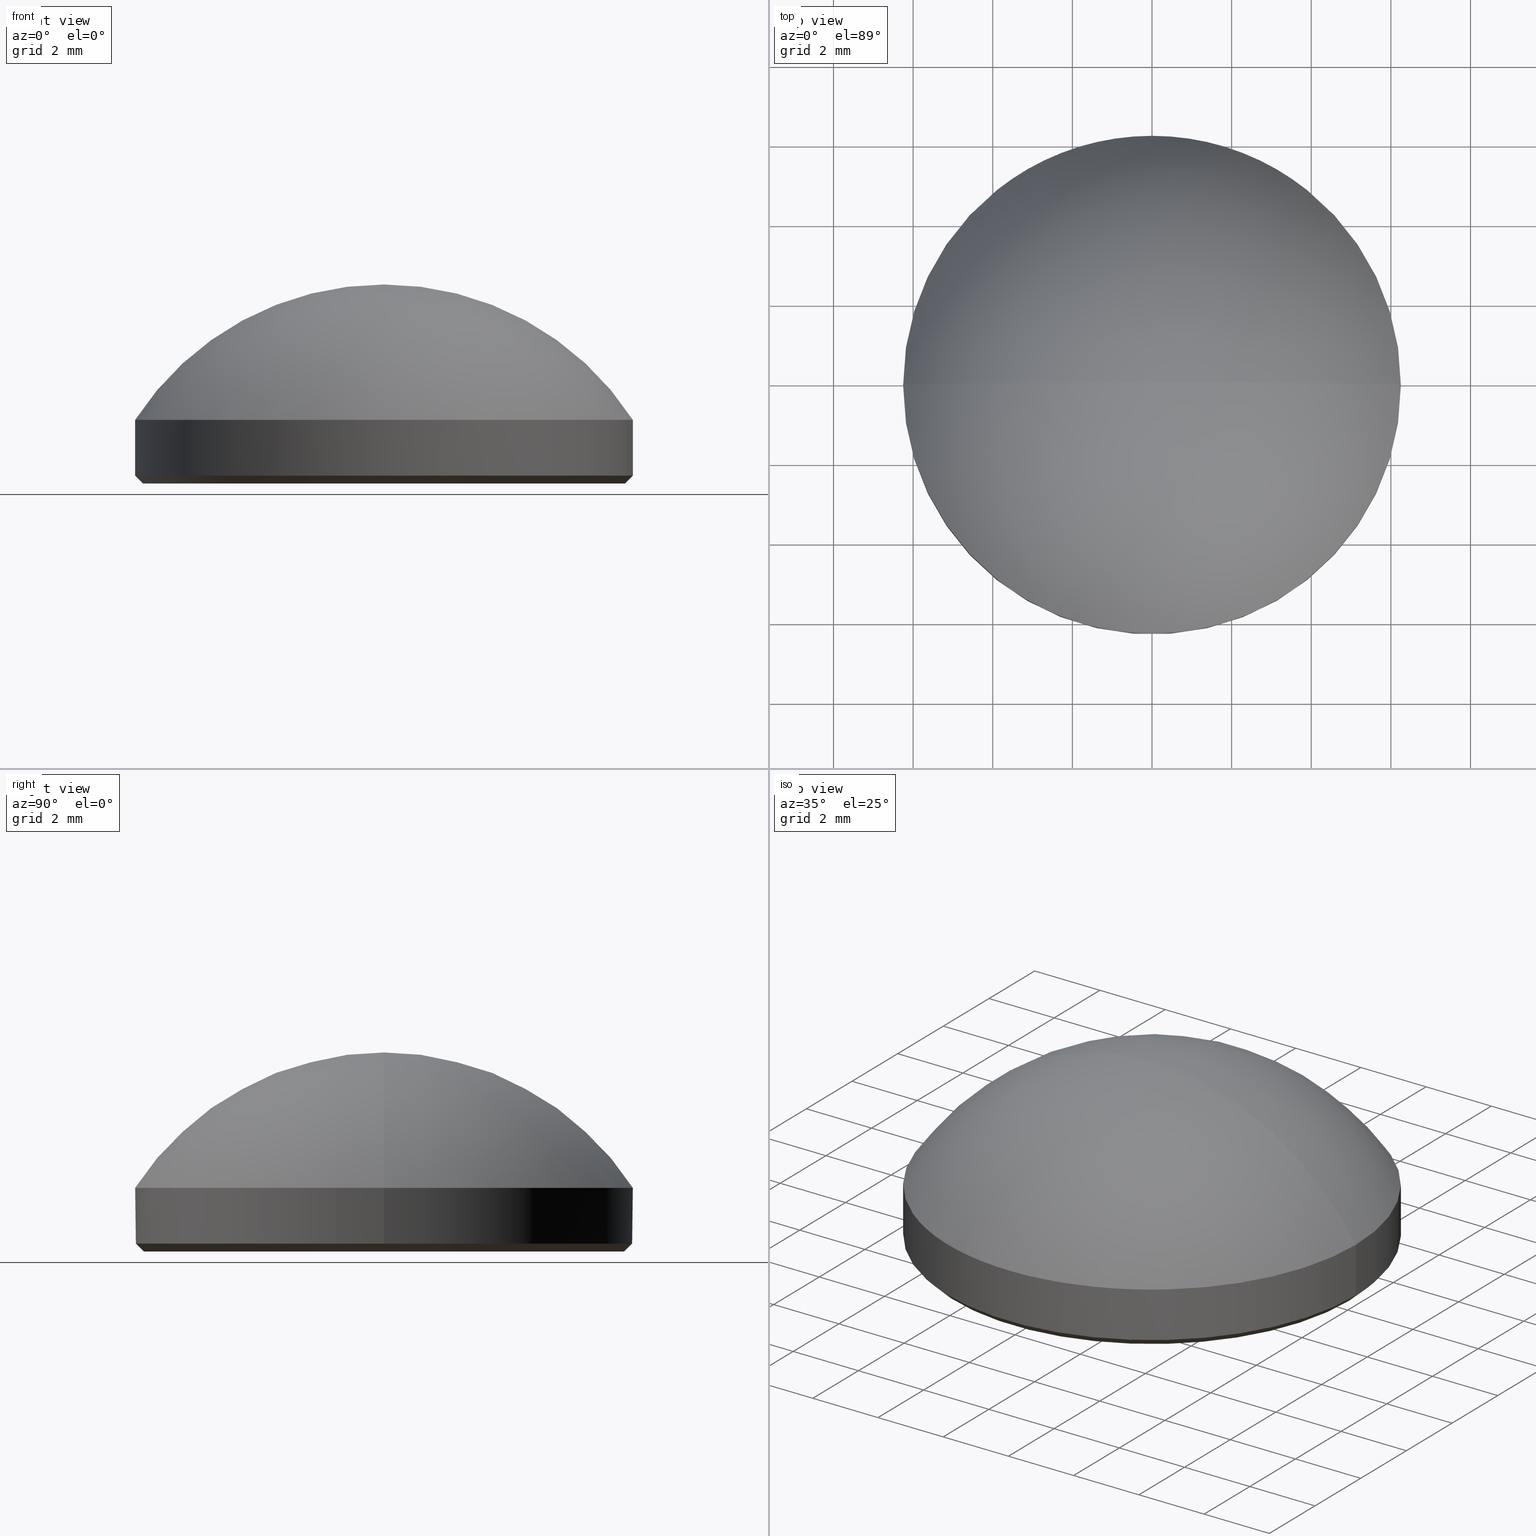
[diagram: canonical four-view strip — front | top / right | iso, engineering-drawing reading convention]
A machine part, canonical four-view strip (front | top / right | iso — engineering-drawing reading convention). The complete STEP part file that produces these views, byte-faithful:
ISO-10303-21;
HEADER;
FILE_DESCRIPTION (( 'STEP AP214' ),
    '1' );
FILE_NAME ('GLA11-012-9.5-SWIR.STEP',
    '2024-08-09T08:24:05',
    ( 'Windows User' ),
    ( 'P R C' ),
    'SwSTEP 2.0',
    'SolidWorks 2022',
    '' );
FILE_SCHEMA (( 'AUTOMOTIVE_DESIGN' ));
ENDSEC;

DATA;
#1 = CARTESIAN_POINT ( 'NONE',  ( 0.000000000000000000, 0.000000000000000000, 0.000000000000000000 ) ) ;
#2 = EDGE_CURVE ( 'NONE', #13, #117, #185, .T. ) ;
#3 = DIRECTION ( 'NONE',  ( -0.000000000000000000, -0.000000000000000000, 1.000000000000000000 ) ) ;
#4 = DIRECTION ( 'NONE',  ( 0.000000000000000000, 0.000000000000000000, 1.000000000000000000 ) ) ;
#5 =( NAMED_UNIT ( * ) SI_UNIT ( $, .STERADIAN. ) SOLID_ANGLE_UNIT ( ) );
#6 = EDGE_CURVE ( 'NONE', #61, #165, #167, .T. ) ;
#7 = APPLICATION_CONTEXT ( 'automotive_design' ) ;
#8 = AXIS2_PLACEMENT_3D ( 'NONE', #193, #196, #59 ) ;
#9 = ORIENTED_EDGE ( 'NONE', *, *, #182, .T. ) ;
#10 = CARTESIAN_POINT ( 'NONE',  ( 0.000000000000000000, 0.000000000000000000, 0.000000000000000000 ) ) ;
#11 = ORIENTED_EDGE ( 'NONE', *, *, #125, .T. ) ;
#12 = APPLICATION_PROTOCOL_DEFINITION ( 'draft international standard', 'automotive_design', 1998, #7 ) ;
#13 = VERTEX_POINT ( 'NONE', #28 ) ;
#14 = CIRCLE ( 'NONE', #142, 6.250000000000000000 ) ;
#15 = DIRECTION ( 'NONE',  ( -0.000000000000000000, -0.000000000000000000, -1.000000000000000000 ) ) ;
#16 = DIRECTION ( 'NONE',  ( -1.224646799147353207E-16, -1.000000000000000000, -0.000000000000000000 ) ) ;
#17 = UNCERTAINTY_MEASURE_WITH_UNIT (LENGTH_MEASURE( 1.000000000000000082E-05 ), #90, 'distance_accuracy_value', 'NONE');
#18 = VECTOR ( 'NONE', #15, 1000.000000000000000 ) ;
#19 = CARTESIAN_POINT ( 'NONE',  ( -4.558432543370360034E-16, 0.000000000000000000, 5.000000000000000000 ) ) ;
#20 = DIRECTION ( 'NONE',  ( 0.000000000000000000, 0.000000000000000000, 1.000000000000000000 ) ) ;
#21 = ADVANCED_FACE ( 'NONE', ( #111 ), #181, .T. ) ;
#22 = CARTESIAN_POINT ( 'NONE',  ( 0.000000000000000000, 0.000000000000000000, 0.000000000000000000 ) ) ;
#23 = SURFACE_STYLE_FILL_AREA ( #49 ) ;
#24 = AXIS2_PLACEMENT_3D ( 'NONE', #22, #102, #169 ) ;
#25 = ORIENTED_EDGE ( 'NONE', *, *, #6, .T. ) ;
#26 = SHAPE_DEFINITION_REPRESENTATION ( #82, #187 ) ;
#27 = ORIENTED_EDGE ( 'NONE', *, *, #186, .F. ) ;
#28 = CARTESIAN_POINT ( 'NONE',  ( -6.050000000000000711, 7.531577814756223050E-16, 0.000000000000000000 ) ) ;
#29 = DIRECTION ( 'NONE',  ( 1.000000000000000000, 0.000000000000000000, 0.000000000000000000 ) ) ;
#30 = DIRECTION ( 'NONE',  ( -0.000000000000000000, -0.000000000000000000, 1.000000000000000000 ) ) ;
#31 = AXIS2_PLACEMENT_3D ( 'NONE', #113, #30, #129 ) ;
#32 = DIRECTION ( 'NONE',  ( 0.000000000000000000, 1.000000000000000000, 0.000000000000000000 ) ) ;
#33 = DIRECTION ( 'NONE',  ( 0.000000000000000000, 0.000000000000000000, 1.000000000000000000 ) ) ;
#34 = CYLINDRICAL_SURFACE ( 'NONE', #163, 6.250000000000000000 ) ;
#35 = EDGE_CURVE ( 'NONE', #209, #117, #92, .T. ) ;
#36 =( NAMED_UNIT ( * ) PLANE_ANGLE_UNIT ( ) SI_UNIT ( $, .RADIAN. ) );
#37 = DIRECTION ( 'NONE',  ( 1.000000000000000000, 0.000000000000000000, 0.000000000000000000 ) ) ;
#38 = ORIENTED_EDGE ( 'NONE', *, *, #35, .T. ) ;
#39 = DIRECTION ( 'NONE',  ( 1.000000000000000000, 0.000000000000000000, 0.000000000000000000 ) ) ;
#40 = EDGE_LOOP ( 'NONE', ( #73, #89, #114, #180 ) ) ;
#41 = ORIENTED_EDGE ( 'NONE', *, *, #104, .F. ) ;
#42 = AXIS2_PLACEMENT_3D ( 'NONE', #48, #171, #68 ) ;
#43 = ADVANCED_FACE ( 'NONE', ( #210 ), #74, .T. ) ;
#44 = FACE_OUTER_BOUND ( 'NONE', #208, .T. ) ;
#45 = CIRCLE ( 'NONE', #212, 6.250000000000000000 ) ;
#46 = PRESENTATION_LAYER_ASSIGNMENT (  '', '', ( #188 ) ) ;
#47 = PRESENTATION_STYLE_ASSIGNMENT (( #66 ) ) ;
#48 = CARTESIAN_POINT ( 'NONE',  ( 0.000000000000000000, 0.000000000000000000, -2.444485294117647367 ) ) ;
#49 = FILL_AREA_STYLE ('',( #172 ) ) ;
#50 = DIRECTION ( 'NONE',  ( -1.000000000000000000, 0.000000000000000000, 0.000000000000000000 ) ) ;
#51 = AXIS2_PLACEMENT_3D ( 'NONE', #124, #4, #87 ) ;
#52 = DIRECTION ( 'NONE',  ( -0.000000000000000000, -0.000000000000000000, -1.000000000000000000 ) ) ;
#53 = ORIENTED_EDGE ( 'NONE', *, *, #141, .F. ) ;
#54 = PRESENTATION_STYLE_ASSIGNMENT (( #194 ) ) ;
#55 = EDGE_CURVE ( 'NONE', #13, #98, #60, .T. ) ;
#56 = ORIENTED_EDGE ( 'NONE', *, *, #2, .F. ) ;
#57 = EDGE_LOOP ( 'NONE', ( #166, #206, #38, #211 ) ) ;
#58 = CARTESIAN_POINT ( 'NONE',  ( 0.000000000000000000, 0.000000000000000000, 0.000000000000000000 ) ) ;
#59 = DIRECTION ( 'NONE',  ( 1.000000000000000000, 0.000000000000000000, 0.000000000000000000 ) ) ;
#60 = CIRCLE ( 'NONE', #134, 6.050000000000000711 ) ;
#61 = VERTEX_POINT ( 'NONE', #94 ) ;
#62 = VECTOR ( 'NONE', #121, 1000.000000000000000 ) ;
#63 = PRODUCT ( 'GLA11-012-9.5-SWIR', 'GLA11-012-9.5-SWIR', '', ( #179 ) ) ;
#64 = DIRECTION ( 'NONE',  ( -1.000000000000000000, 0.000000000000000000, 0.000000000000000000 ) ) ;
#65 = DIRECTION ( 'NONE',  ( -0.000000000000000000, -0.000000000000000000, -1.000000000000000000 ) ) ;
#66 = SURFACE_STYLE_USAGE ( .BOTH. , #216 ) ;
#67 = PRODUCT_DEFINITION_FORMATION_WITH_SPECIFIED_SOURCE ( '�κ�', '', #63, .NOT_KNOWN. ) ;
#68 = DIRECTION ( 'NONE',  ( -1.000000000000000000, 0.000000000000000000, 0.000000000000000000 ) ) ;
#69 = AXIS2_PLACEMENT_3D ( 'NONE', #203, #190, #50 ) ;
#70 = DIRECTION ( 'NONE',  ( 1.000000000000000000, -1.224646799147353207E-16, 0.000000000000000000 ) ) ;
#71 = EDGE_LOOP ( 'NONE', ( #11, #25, #27 ) ) ;
#72 =( NAMED_UNIT ( * ) PLANE_ANGLE_UNIT ( ) SI_UNIT ( $, .RADIAN. ) );
#73 = ORIENTED_EDGE ( 'NONE', *, *, #182, .F. ) ;
#74 = CONICAL_SURFACE ( 'NONE', #8, 6.250000000000000000, 0.7853981633974504994 ) ;
#75 = ORIENTED_EDGE ( 'NONE', *, *, #6, .F. ) ;
#76 = CARTESIAN_POINT ( 'NONE',  ( -6.250000000000000000, 0.000000000000000000, 1.600000000000000089 ) ) ;
#77 = AXIS2_PLACEMENT_3D ( 'NONE', #84, #33, #155 ) ;
#78 = ORIENTED_EDGE ( 'NONE', *, *, #2, .T. ) ;
#79 = EDGE_CURVE ( 'NONE', #96, #117, #14, .T. ) ;
#80 =( GEOMETRIC_REPRESENTATION_CONTEXT ( 3 ) GLOBAL_UNCERTAINTY_ASSIGNED_CONTEXT ( ( #135 ) ) GLOBAL_UNIT_ASSIGNED_CONTEXT ( ( #202, #36, #5 ) ) REPRESENTATION_CONTEXT ( 'NONE', 'WORKASPACE' ) );
#81 = ADVANCED_FACE ( 'NONE', ( #44 ), #136, .T. ) ;
#82 = PRODUCT_DEFINITION_SHAPE ( 'NONE', 'NONE',  #153 ) ;
#83 = CARTESIAN_POINT ( 'NONE',  ( -6.250000000000000000, 0.000000000000000000, 1.600000000000000089 ) ) ;
#84 = CARTESIAN_POINT ( 'NONE',  ( 0.000000000000000000, 0.000000000000000000, 1.600000000000000089 ) ) ;
#85 = PRODUCT_DEFINITION_CONTEXT ( 'detailed design', #7, 'design' ) ;
#86 = FACE_OUTER_BOUND ( 'NONE', #71, .T. ) ;
#87 = DIRECTION ( 'NONE',  ( 1.000000000000000000, 0.000000000000000000, 0.000000000000000000 ) ) ;
#88 = FILL_AREA_STYLE ('',( #144 ) ) ;
#89 = ORIENTED_EDGE ( 'NONE', *, *, #108, .T. ) ;
#90 =( LENGTH_UNIT ( ) NAMED_UNIT ( * ) SI_UNIT ( .MILLI., .METRE. ) );
#91 = ORIENTED_EDGE ( 'NONE', *, *, #79, .F. ) ;
#92 = LINE ( 'NONE', #76, #18 ) ;
#93 = CIRCLE ( 'NONE', #214, 7.444485294117647811 ) ;
#94 = CARTESIAN_POINT ( 'NONE',  ( 6.250000000000000000, 7.654042494670957606E-16, 1.600000000000000089 ) ) ;
#95 = STYLED_ITEM ( 'NONE', ( #54 ), #187 ) ;
#96 = VERTEX_POINT ( 'NONE', #157 ) ;
#97 = MANIFOLD_SOLID_BREP ( '����1', #116 ) ;
#98 = VERTEX_POINT ( 'NONE', #139 ) ;
#99 = ADVANCED_FACE ( 'NONE', ( #101 ), #34, .T. ) ;
#100 = PRODUCT_RELATED_PRODUCT_CATEGORY ( 'part', '', ( #63 ) ) ;
#101 = FACE_OUTER_BOUND ( 'NONE', #57, .T. ) ;
#102 = DIRECTION ( 'NONE',  ( 0.000000000000000000, 0.000000000000000000, 1.000000000000000000 ) ) ;
#103 = CARTESIAN_POINT ( 'NONE',  ( 6.250000000000000000, 7.654042494670957606E-16, 1.600000000000000089 ) ) ;
#104 = EDGE_CURVE ( 'NONE', #117, #96, #45, .T. ) ;
#105 = DIRECTION ( 'NONE',  ( 1.000000000000000000, 0.000000000000000000, 0.000000000000000000 ) ) ;
#106 = FACE_OUTER_BOUND ( 'NONE', #40, .T. ) ;
#107 = AXIS2_PLACEMENT_3D ( 'NONE', #10, #148, #146 ) ;
#108 = EDGE_CURVE ( 'NONE', #61, #96, #122, .T. ) ;
#109 =( NAMED_UNIT ( * ) SI_UNIT ( $, .STERADIAN. ) SOLID_ANGLE_UNIT ( ) );
#110 = AXIS2_PLACEMENT_3D ( 'NONE', #1, #65, #37 ) ;
#111 = FACE_OUTER_BOUND ( 'NONE', #152, .T. ) ;
#112 = APPLICATION_PROTOCOL_DEFINITION ( 'draft international standard', 'automotive_design', 1998, #118 ) ;
#113 = CARTESIAN_POINT ( 'NONE',  ( 0.000000000000000000, 0.000000000000000000, 0.1999999999999987899 ) ) ;
#114 = ORIENTED_EDGE ( 'NONE', *, *, #79, .T. ) ;
#115 = CARTESIAN_POINT ( 'NONE',  ( 0.000000000000000000, 0.000000000000000000, 0.1999999999999987899 ) ) ;
#116 = CLOSED_SHELL ( 'NONE', ( #43, #119, #149, #99, #161, #21, #81 ) ) ;
#117 = VERTEX_POINT ( 'NONE', #170 ) ;
#118 = APPLICATION_CONTEXT ( 'automotive_design' ) ;
#119 = ADVANCED_FACE ( 'NONE', ( #86 ), #174, .T. ) ;
#120 = VECTOR ( 'NONE', #199, 1000.000000000000114 ) ;
#121 = DIRECTION ( 'NONE',  ( -0.000000000000000000, -0.000000000000000000, -1.000000000000000000 ) ) ;
#122 = LINE ( 'NONE', #103, #62 ) ;
#123 = CIRCLE ( 'NONE', #110, 6.050000000000000711 ) ;
#124 = CARTESIAN_POINT ( 'NONE',  ( 0.000000000000000000, 0.000000000000000000, 1.600000000000000089 ) ) ;
#125 = EDGE_CURVE ( 'NONE', #209, #61, #197, .T. ) ;
#126 =( NAMED_UNIT ( * ) SI_UNIT ( $, .STERADIAN. ) SOLID_ANGLE_UNIT ( ) );
#127 =( GEOMETRIC_REPRESENTATION_CONTEXT ( 3 ) GLOBAL_UNCERTAINTY_ASSIGNED_CONTEXT ( ( #178 ) ) GLOBAL_UNIT_ASSIGNED_CONTEXT ( ( #128, #72, #109 ) ) REPRESENTATION_CONTEXT ( 'NONE', 'WORKASPACE' ) );
#128 =( LENGTH_UNIT ( ) NAMED_UNIT ( * ) SI_UNIT ( .MILLI., .METRE. ) );
#129 = DIRECTION ( 'NONE',  ( 1.000000000000000000, 0.000000000000000000, 0.000000000000000000 ) ) ;
#130 = CARTESIAN_POINT ( 'NONE',  ( 0.000000000000000000, 0.000000000000000000, -2.444485294117647367 ) ) ;
#131 = ORIENTED_EDGE ( 'NONE', *, *, #55, .F. ) ;
#132 = DIRECTION ( 'NONE',  ( -0.000000000000000000, -0.000000000000000000, -1.000000000000000000 ) ) ;
#133 = CARTESIAN_POINT ( 'NONE',  ( 0.000000000000000000, 0.000000000000000000, -2.444485294117647367 ) ) ;
#134 = AXIS2_PLACEMENT_3D ( 'NONE', #58, #132, #39 ) ;
#135 = UNCERTAINTY_MEASURE_WITH_UNIT (LENGTH_MEASURE( 1.000000000000000082E-05 ), #202, 'distance_accuracy_value', 'NONE');
#136 = CONICAL_SURFACE ( 'NONE', #31, 6.250000000000000000, 0.7853981633974504994 ) ;
#137 = CARTESIAN_POINT ( 'NONE',  ( 0.000000000000000000, 0.000000000000000000, -2.444485294117647367 ) ) ;
#138 =( GEOMETRIC_REPRESENTATION_CONTEXT ( 3 ) GLOBAL_UNCERTAINTY_ASSIGNED_CONTEXT ( ( #17 ) ) GLOBAL_UNIT_ASSIGNED_CONTEXT ( ( #90, #207, #126 ) ) REPRESENTATION_CONTEXT ( 'NONE', 'WORKASPACE' ) );
#139 = CARTESIAN_POINT ( 'NONE',  ( 6.050000000000000711, 0.000000000000000000, 0.000000000000000000 ) ) ;
#140 = LINE ( 'NONE', #191, #120 ) ;
#141 = EDGE_CURVE ( 'NONE', #98, #96, #140, .T. ) ;
#142 = AXIS2_PLACEMENT_3D ( 'NONE', #115, #184, #29 ) ;
#143 = FACE_OUTER_BOUND ( 'NONE', #213, .T. ) ;
#144 = FILL_AREA_STYLE_COLOUR ( '', #158 ) ;
#145 = ORIENTED_EDGE ( 'NONE', *, *, #55, .T. ) ;
#146 = DIRECTION ( 'NONE',  ( 1.000000000000000000, 0.000000000000000000, 0.000000000000000000 ) ) ;
#147 = ORIENTED_EDGE ( 'NONE', *, *, #141, .T. ) ;
#148 = DIRECTION ( 'NONE',  ( 0.000000000000000000, 0.000000000000000000, 1.000000000000000000 ) ) ;
#149 = ADVANCED_FACE ( 'NONE', ( #106 ), #189, .T. ) ;
#150 = CARTESIAN_POINT ( 'NONE',  ( -6.250000000000000000, 7.654042494670957606E-16, 0.1999999999999987899 ) ) ;
#151 = DIRECTION ( 'NONE',  ( -0.7071067811865490160, 8.659560562354953812E-17, 0.7071067811865460184 ) ) ;
#152 = EDGE_LOOP ( 'NONE', ( #75, #9, #160 ) ) ;
#153 = PRODUCT_DEFINITION ( 'δ֪', '', #67, #85 ) ;
#154 = VECTOR ( 'NONE', #151, 1000.000000000000114 ) ;
#155 = DIRECTION ( 'NONE',  ( 1.000000000000000000, 0.000000000000000000, 0.000000000000000000 ) ) ;
#156 = CARTESIAN_POINT ( 'NONE',  ( 0.000000000000000000, 0.000000000000000000, 1.600000000000000089 ) ) ;
#157 = CARTESIAN_POINT ( 'NONE',  ( 6.250000000000000000, 7.654042494670957606E-16, 0.1999999999999987899 ) ) ;
#158 = COLOUR_RGB ( '',1.000000000000000000, 1.000000000000000000, 1.000000000000000000 ) ;
#159 = COLOUR_RGB ( '',1.000000000000000000, 1.000000000000000000, 1.000000000000000000 ) ;
#160 = ORIENTED_EDGE ( 'NONE', *, *, #186, .T. ) ;
#161 = ADVANCED_FACE ( 'NONE', ( #143 ), #204, .F. ) ;
#162 = ORIENTED_EDGE ( 'NONE', *, *, #215, .F. ) ;
#163 = AXIS2_PLACEMENT_3D ( 'NONE', #156, #52, #64 ) ;
#164 = EDGE_LOOP ( 'NONE', ( #131, #78, #91, #53 ) ) ;
#165 = VERTEX_POINT ( 'NONE', #19 ) ;
#166 = ORIENTED_EDGE ( 'NONE', *, *, #108, .F. ) ;
#167 = CIRCLE ( 'NONE', #168, 7.444485294117647811 ) ;
#168 = AXIS2_PLACEMENT_3D ( 'NONE', #133, #16, #70 ) ;
#169 = DIRECTION ( 'NONE',  ( 1.000000000000000000, 0.000000000000000000, -0.000000000000000000 ) ) ;
#170 = CARTESIAN_POINT ( 'NONE',  ( -6.250000000000000000, 0.000000000000000000, 0.1999999999999987899 ) ) ;
#171 = DIRECTION ( 'NONE',  ( -0.000000000000000000, -1.000000000000000000, 0.000000000000000000 ) ) ;
#172 = FILL_AREA_STYLE_COLOUR ( '', #159 ) ;
#173 = MECHANICAL_DESIGN_GEOMETRIC_PRESENTATION_REPRESENTATION (  '', ( #95 ), #127 ) ;
#174 = SPHERICAL_SURFACE ( 'NONE', #42, 7.444485294117647811 ) ;
#175 = SURFACE_STYLE_FILL_AREA ( #88 ) ;
#176 = CIRCLE ( 'NONE', #77, 6.250000000000000000 ) ;
#177 = ORIENTED_EDGE ( 'NONE', *, *, #215, .T. ) ;
#178 = UNCERTAINTY_MEASURE_WITH_UNIT (LENGTH_MEASURE( 1.000000000000000082E-05 ), #128, 'distance_accuracy_value', 'NONE');
#179 = PRODUCT_CONTEXT ( 'NONE', #118, 'mechanical' ) ;
#180 = ORIENTED_EDGE ( 'NONE', *, *, #35, .F. ) ;
#181 = SPHERICAL_SURFACE ( 'NONE', #200, 7.444485294117647811 ) ;
#182 = EDGE_CURVE ( 'NONE', #61, #209, #176, .T. ) ;
#183 = MECHANICAL_DESIGN_GEOMETRIC_PRESENTATION_REPRESENTATION (  '', ( #188 ), #80 ) ;
#184 = DIRECTION ( 'NONE',  ( -0.000000000000000000, -0.000000000000000000, 1.000000000000000000 ) ) ;
#185 = LINE ( 'NONE', #150, #154 ) ;
#186 = EDGE_CURVE ( 'NONE', #209, #165, #93, .T. ) ;
#187 = ADVANCED_BREP_SHAPE_REPRESENTATION ( 'GLA11-012-9.5-SWIR', ( #97, #107 ), #138 ) ;
#188 = STYLED_ITEM ( 'NONE', ( #47 ), #97 ) ;
#189 = CYLINDRICAL_SURFACE ( 'NONE', #69, 6.250000000000000000 ) ;
#190 = DIRECTION ( 'NONE',  ( -0.000000000000000000, -0.000000000000000000, -1.000000000000000000 ) ) ;
#191 = CARTESIAN_POINT ( 'NONE',  ( 6.250000000000000000, 0.000000000000000000, 0.1999999999999987899 ) ) ;
#192 = PRESENTATION_LAYER_ASSIGNMENT (  '', '', ( #95 ) ) ;
#193 = CARTESIAN_POINT ( 'NONE',  ( 0.000000000000000000, 0.000000000000000000, 0.1999999999999987899 ) ) ;
#194 = SURFACE_STYLE_USAGE ( .BOTH. , #205 ) ;
#195 = DIRECTION ( 'NONE',  ( -1.000000000000000000, 0.000000000000000000, 0.000000000000000000 ) ) ;
#196 = DIRECTION ( 'NONE',  ( -0.000000000000000000, -0.000000000000000000, 1.000000000000000000 ) ) ;
#197 = CIRCLE ( 'NONE', #51, 6.250000000000000000 ) ;
#198 = DIRECTION ( 'NONE',  ( -0.000000000000000000, -1.000000000000000000, 0.000000000000000000 ) ) ;
#199 = DIRECTION ( 'NONE',  ( 0.7071067811865490160, 0.000000000000000000, 0.7071067811865460184 ) ) ;
#200 = AXIS2_PLACEMENT_3D ( 'NONE', #130, #198, #195 ) ;
#201 = CARTESIAN_POINT ( 'NONE',  ( 0.000000000000000000, 0.000000000000000000, 0.1999999999999987899 ) ) ;
#202 =( LENGTH_UNIT ( ) NAMED_UNIT ( * ) SI_UNIT ( .MILLI., .METRE. ) );
#203 = CARTESIAN_POINT ( 'NONE',  ( 0.000000000000000000, 0.000000000000000000, 1.600000000000000089 ) ) ;
#204 = PLANE ( 'NONE',  #24 ) ;
#205 = SURFACE_SIDE_STYLE ('',( #175 ) ) ;
#206 = ORIENTED_EDGE ( 'NONE', *, *, #125, .F. ) ;
#207 =( NAMED_UNIT ( * ) PLANE_ANGLE_UNIT ( ) SI_UNIT ( $, .RADIAN. ) );
#208 = EDGE_LOOP ( 'NONE', ( #56, #162, #147, #41 ) ) ;
#209 = VERTEX_POINT ( 'NONE', #83 ) ;
#210 = FACE_OUTER_BOUND ( 'NONE', #164, .T. ) ;
#211 = ORIENTED_EDGE ( 'NONE', *, *, #104, .T. ) ;
#212 = AXIS2_PLACEMENT_3D ( 'NONE', #201, #3, #105 ) ;
#213 = EDGE_LOOP ( 'NONE', ( #177, #145 ) ) ;
#214 = AXIS2_PLACEMENT_3D ( 'NONE', #137, #32, #20 ) ;
#215 = EDGE_CURVE ( 'NONE', #98, #13, #123, .T. ) ;
#216 = SURFACE_SIDE_STYLE ('',( #23 ) ) ;
ENDSEC;
END-ISO-10303-21;
